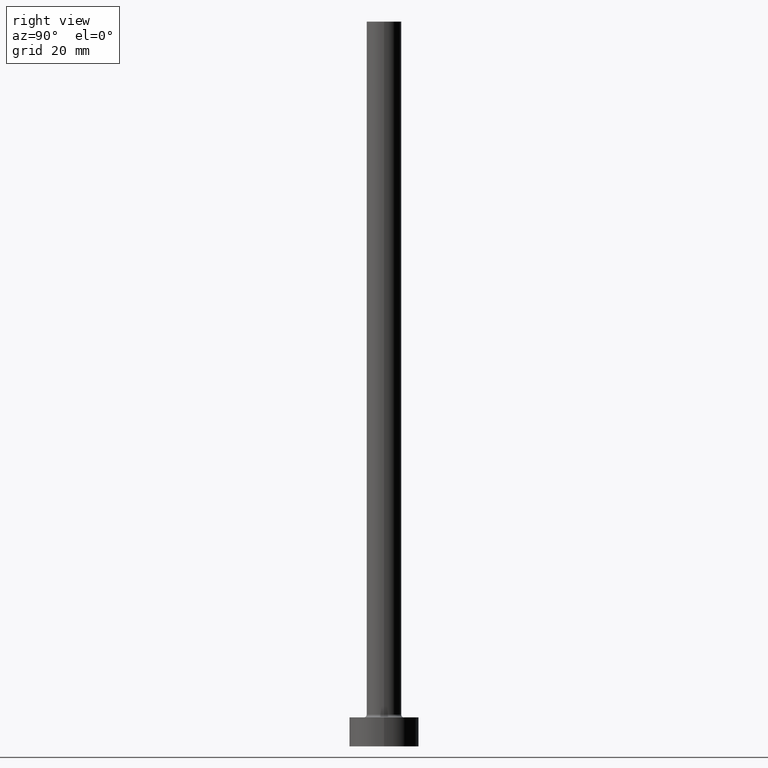
[diagram: clean part render]
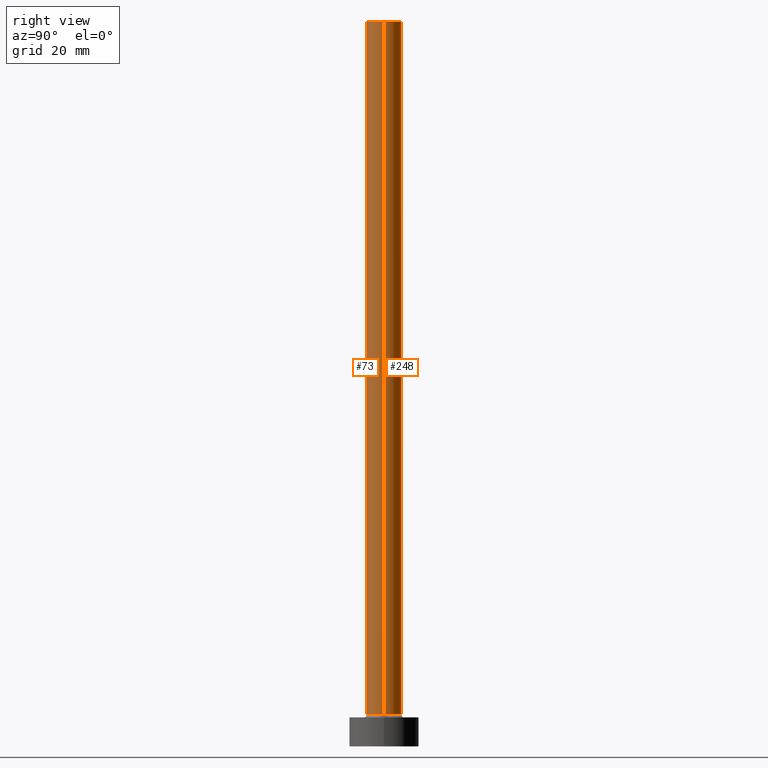
[diagram: same view with one multi-face feature highlighted, each face labeled with its STEP entity id]
A machine part, right view. The highlighted faces form ONE feature: a constant-radius fillet chain: 2 tangent blend faces with common blend radius 3 mm. The faces share edges in the B-rep.
Their STEP definitions:
[1] entity #73 (Cylinder):
#6 = LINE ( 'NONE', #357, #21 ) ;
#8 = CARTESIAN_POINT ( 'NONE',  ( 0.000000000000000000, 0.000000000000000000, 125.0000000000000000 ) ) ;
#21 = VECTOR ( 'NONE', #36, 1000.000000000000000 ) ;
#29 = FACE_OUTER_BOUND ( 'NONE', #280, .T. ) ;
#36 = DIRECTION ( 'NONE',  ( -0.000000000000000000, -0.000000000000000000, -1.000000000000000000 ) ) ;
#47 = DIRECTION ( 'NONE',  ( 0.000000000000000000, 0.000000000000000000, 1.000000000000000000 ) ) ;
#57 = AXIS2_PLACEMENT_3D ( 'NONE', #77, #328, #294 ) ;
#58 = DIRECTION ( 'NONE',  ( -1.000000000000000000, 0.000000000000000000, 0.000000000000000000 ) ) ;
#73 = ADVANCED_FACE ( 'NONE', ( #29 ), #450, .T. ) ;
#77 = CARTESIAN_POINT ( 'NONE',  ( 0.000000000000000000, 0.000000000000000000, 5.500000000000005329 ) ) ;
#78 = AXIS2_PLACEMENT_3D ( 'NONE', #8, #47, #113 ) ;
#80 = CARTESIAN_POINT ( 'NONE',  ( -3.000000000000000444, 0.000000000000000000, 5.500000000000005329 ) ) ;
#87 = CIRCLE ( 'NONE', #78, 3.000000000000000444 ) ;
#99 = ORIENTED_EDGE ( 'NONE', *, *, #340, .F. ) ;
#106 = EDGE_CURVE ( 'NONE', #195, #344, #319, .T. ) ;
#113 = DIRECTION ( 'NONE',  ( 1.000000000000000000, 0.000000000000000000, 0.000000000000000000 ) ) ;
#132 = VERTEX_POINT ( 'NONE', #289 ) ;
#139 = CIRCLE ( 'NONE', #57, 3.000000000000000444 ) ;
#156 = CARTESIAN_POINT ( 'NONE',  ( 3.000000000000000444, 3.673940397442060361E-16, 125.0000000000000000 ) ) ;
#177 = DIRECTION ( 'NONE',  ( -0.000000000000000000, -0.000000000000000000, -1.000000000000000000 ) ) ;
#195 = VERTEX_POINT ( 'NONE', #218 ) ;
#201 = ORIENTED_EDGE ( 'NONE', *, *, #399, .T. ) ;
#208 = VECTOR ( 'NONE', #433, 1000.000000000000000 ) ;
#218 = CARTESIAN_POINT ( 'NONE',  ( -3.000000000000000444, 0.000000000000000000, 125.0000000000000000 ) ) ;
#220 = EDGE_CURVE ( 'NONE', #339, #132, #6, .T. ) ;
#246 = AXIS2_PLACEMENT_3D ( 'NONE', #382, #177, #58 ) ;
#280 = EDGE_LOOP ( 'NONE', ( #386, #99, #384, #201 ) ) ;
#289 = CARTESIAN_POINT ( 'NONE',  ( 3.000000000000000444, 3.673940397442060361E-16, 5.500000000000005329 ) ) ;
#294 = DIRECTION ( 'NONE',  ( 1.000000000000000000, 0.000000000000000000, 0.000000000000000000 ) ) ;
#319 = LINE ( 'NONE', #395, #208 ) ;
#328 = DIRECTION ( 'NONE',  ( 0.000000000000000000, 0.000000000000000000, 1.000000000000000000 ) ) ;
#339 = VERTEX_POINT ( 'NONE', #156 ) ;
#340 = EDGE_CURVE ( 'NONE', #195, #339, #87, .T. ) ;
#344 = VERTEX_POINT ( 'NONE', #80 ) ;
#357 = CARTESIAN_POINT ( 'NONE',  ( 3.000000000000000444, 3.673940397442060361E-16, 125.0000000000000000 ) ) ;
#382 = CARTESIAN_POINT ( 'NONE',  ( 0.000000000000000000, 0.000000000000000000, 125.0000000000000000 ) ) ;
#384 = ORIENTED_EDGE ( 'NONE', *, *, #106, .T. ) ;
#386 = ORIENTED_EDGE ( 'NONE', *, *, #220, .F. ) ;
#395 = CARTESIAN_POINT ( 'NONE',  ( -3.000000000000000444, 0.000000000000000000, 125.0000000000000000 ) ) ;
#399 = EDGE_CURVE ( 'NONE', #344, #132, #139, .T. ) ;
#433 = DIRECTION ( 'NONE',  ( -0.000000000000000000, -0.000000000000000000, -1.000000000000000000 ) ) ;
#450 = CYLINDRICAL_SURFACE ( 'NONE', #246, 3.000000000000000444 ) ;
[2] entity #248 (Cylinder):
#5 = AXIS2_PLACEMENT_3D ( 'NONE', #68, #219, #428 ) ;
#6 = LINE ( 'NONE', #357, #21 ) ;
#21 = VECTOR ( 'NONE', #36, 1000.000000000000000 ) ;
#36 = DIRECTION ( 'NONE',  ( -0.000000000000000000, -0.000000000000000000, -1.000000000000000000 ) ) ;
#51 = CARTESIAN_POINT ( 'NONE',  ( 0.000000000000000000, 0.000000000000000000, 125.0000000000000000 ) ) ;
#68 = CARTESIAN_POINT ( 'NONE',  ( 0.000000000000000000, 0.000000000000000000, 5.500000000000005329 ) ) ;
#80 = CARTESIAN_POINT ( 'NONE',  ( -3.000000000000000444, 0.000000000000000000, 5.500000000000005329 ) ) ;
#90 = EDGE_CURVE ( 'NONE', #339, #195, #158, .T. ) ;
#98 = CARTESIAN_POINT ( 'NONE',  ( 0.000000000000000000, 0.000000000000000000, 125.0000000000000000 ) ) ;
#106 = EDGE_CURVE ( 'NONE', #195, #344, #319, .T. ) ;
#132 = VERTEX_POINT ( 'NONE', #289 ) ;
#146 = CIRCLE ( 'NONE', #5, 3.000000000000000444 ) ;
#156 = CARTESIAN_POINT ( 'NONE',  ( 3.000000000000000444, 3.673940397442060361E-16, 125.0000000000000000 ) ) ;
#158 = CIRCLE ( 'NONE', #455, 3.000000000000000444 ) ;
#191 = ORIENTED_EDGE ( 'NONE', *, *, #106, .F. ) ;
#195 = VERTEX_POINT ( 'NONE', #218 ) ;
#208 = VECTOR ( 'NONE', #433, 1000.000000000000000 ) ;
#211 = EDGE_CURVE ( 'NONE', #132, #344, #146, .T. ) ;
#218 = CARTESIAN_POINT ( 'NONE',  ( -3.000000000000000444, 0.000000000000000000, 125.0000000000000000 ) ) ;
#219 = DIRECTION ( 'NONE',  ( 0.000000000000000000, 0.000000000000000000, 1.000000000000000000 ) ) ;
#220 = EDGE_CURVE ( 'NONE', #339, #132, #6, .T. ) ;
#225 = CYLINDRICAL_SURFACE ( 'NONE', #356, 3.000000000000000444 ) ;
#248 = ADVANCED_FACE ( 'NONE', ( #443 ), #225, .T. ) ;
#262 = ORIENTED_EDGE ( 'NONE', *, *, #90, .F. ) ;
#289 = CARTESIAN_POINT ( 'NONE',  ( 3.000000000000000444, 3.673940397442060361E-16, 5.500000000000005329 ) ) ;
#292 = DIRECTION ( 'NONE',  ( 1.000000000000000000, 0.000000000000000000, 0.000000000000000000 ) ) ;
#306 = EDGE_LOOP ( 'NONE', ( #262, #383, #334, #191 ) ) ;
#319 = LINE ( 'NONE', #395, #208 ) ;
#334 = ORIENTED_EDGE ( 'NONE', *, *, #211, .T. ) ;
#339 = VERTEX_POINT ( 'NONE', #156 ) ;
#344 = VERTEX_POINT ( 'NONE', #80 ) ;
#354 = DIRECTION ( 'NONE',  ( 0.000000000000000000, 0.000000000000000000, 1.000000000000000000 ) ) ;
#356 = AXIS2_PLACEMENT_3D ( 'NONE', #51, #436, #405 ) ;
#357 = CARTESIAN_POINT ( 'NONE',  ( 3.000000000000000444, 3.673940397442060361E-16, 125.0000000000000000 ) ) ;
#383 = ORIENTED_EDGE ( 'NONE', *, *, #220, .T. ) ;
#395 = CARTESIAN_POINT ( 'NONE',  ( -3.000000000000000444, 0.000000000000000000, 125.0000000000000000 ) ) ;
#405 = DIRECTION ( 'NONE',  ( -1.000000000000000000, 0.000000000000000000, 0.000000000000000000 ) ) ;
#428 = DIRECTION ( 'NONE',  ( 1.000000000000000000, 0.000000000000000000, 0.000000000000000000 ) ) ;
#433 = DIRECTION ( 'NONE',  ( -0.000000000000000000, -0.000000000000000000, -1.000000000000000000 ) ) ;
#436 = DIRECTION ( 'NONE',  ( -0.000000000000000000, -0.000000000000000000, -1.000000000000000000 ) ) ;
#443 = FACE_OUTER_BOUND ( 'NONE', #306, .T. ) ;
#455 = AXIS2_PLACEMENT_3D ( 'NONE', #98, #354, #292 ) ;